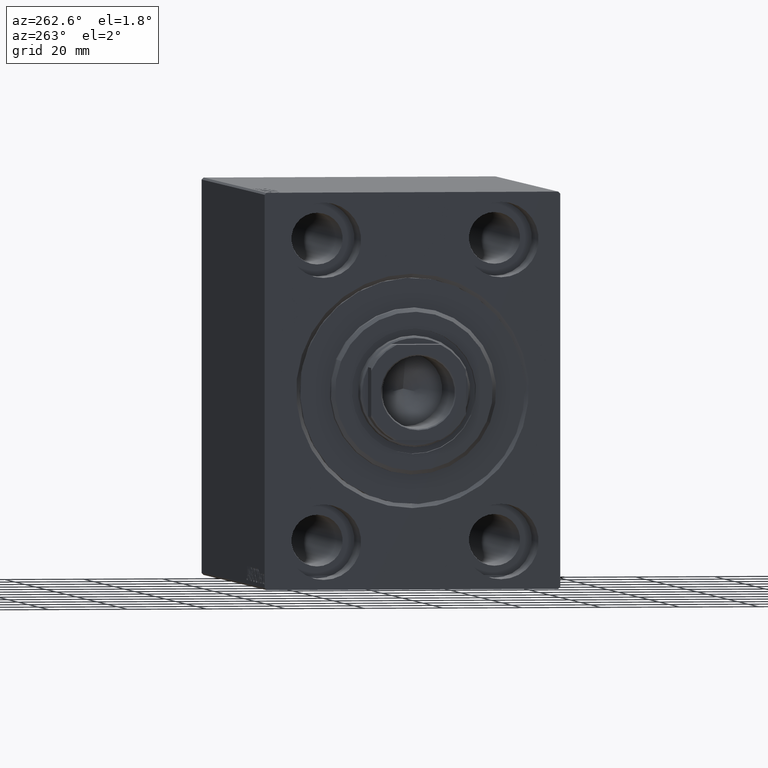
[diagram: clean part render]
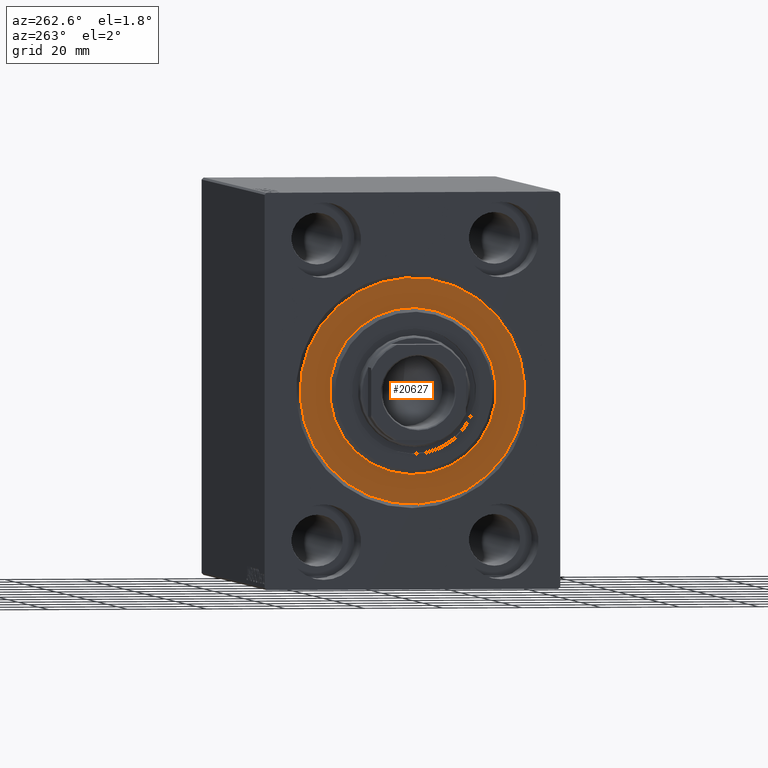
[diagram: same view with one face highlighted and labeled with its STEP entity id]
A machine part, auxiliary view. The second image highlights one B-rep face of the part: STEP entity #20627.
In plain terms, the highlighted planar face has unit normal (1, 0, -0).
Its self-contained STEP definition (entity closure, byte-faithful):
#134 = AXIS2_PLACEMENT_3D ( 'NONE', #29716, #6720, #19922 ) ;
#723 = EDGE_LOOP ( 'NONE', ( #37170, #1459 ) ) ;
#798 = CARTESIAN_POINT ( 'NONE',  ( 0.000000000000000000, 0.000000000000000000, 21.00000000000000000 ) ) ;
#1459 = ORIENTED_EDGE ( 'NONE', *, *, #15046, .F. ) ;
#3487 = CIRCLE ( 'NONE', #9218, 28.50000000000000000 ) ;
#4259 = AXIS2_PLACEMENT_3D ( 'NONE', #40536, #20891, #20254 ) ;
#4590 = VERTEX_POINT ( 'NONE', #28446 ) ;
#6385 = AXIS2_PLACEMENT_3D ( 'NONE', #35016, #17394, #24743 ) ;
#6720 = DIRECTION ( 'NONE',  ( -1.000000000000000000, 0.000000000000000000, 0.000000000000000000 ) ) ;
#7269 = PLANE ( 'NONE',  #4259 ) ;
#9218 = AXIS2_PLACEMENT_3D ( 'NONE', #15676, #25245, #31940 ) ;
#13513 = DIRECTION ( 'NONE',  ( 1.000000000000000000, -0.000000000000000000, 0.000000000000000000 ) ) ;
#15046 = EDGE_CURVE ( 'NONE', #37882, #34484, #19230, .T. ) ;
#15676 = CARTESIAN_POINT ( 'NONE',  ( 0.000000000000000000, 0.000000000000000000, 0.000000000000000000 ) ) ;
#15804 = CIRCLE ( 'NONE', #134, 28.50000000000000000 ) ;
#17394 = DIRECTION ( 'NONE',  ( 1.000000000000000000, -0.000000000000000000, 0.000000000000000000 ) ) ;
#18095 = EDGE_CURVE ( 'NONE', #34484, #37882, #24855, .T. ) ;
#18146 = EDGE_CURVE ( 'NONE', #18247, #4590, #3487, .T. ) ;
#18247 = VERTEX_POINT ( 'NONE', #43530 ) ;
#18462 = EDGE_LOOP ( 'NONE', ( #32184, #30674 ) ) ;
#19200 = CARTESIAN_POINT ( 'NONE',  ( 0.000000000000000000, 2.571758278209441661E-15, -21.00000000000000000 ) ) ;
#19230 = CIRCLE ( 'NONE', #6385, 21.00000000000000000 ) ;
#19922 = DIRECTION ( 'NONE',  ( 0.000000000000000000, 0.000000000000000000, 1.000000000000000000 ) ) ;
#20254 = DIRECTION ( 'NONE',  ( 0.000000000000000000, 0.000000000000000000, 1.000000000000000000 ) ) ;
#20627 = ADVANCED_FACE ( 'NONE', ( #27788, #30271 ), #7269, .F. ) ;
#20891 = DIRECTION ( 'NONE',  ( -1.000000000000000000, 0.000000000000000000, 0.000000000000000000 ) ) ;
#24743 = DIRECTION ( 'NONE',  ( 0.000000000000000000, 0.000000000000000000, -1.000000000000000000 ) ) ;
#24855 = CIRCLE ( 'NONE', #36271, 21.00000000000000000 ) ;
#25235 = EDGE_CURVE ( 'NONE', #4590, #18247, #15804, .T. ) ;
#25245 = DIRECTION ( 'NONE',  ( -1.000000000000000000, 0.000000000000000000, 0.000000000000000000 ) ) ;
#27108 = DIRECTION ( 'NONE',  ( 0.000000000000000000, 0.000000000000000000, -1.000000000000000000 ) ) ;
#27788 = FACE_BOUND ( 'NONE', #723, .T. ) ;
#28446 = CARTESIAN_POINT ( 'NONE',  ( 0.000000000000000000, 0.000000000000000000, -28.50000000000000000 ) ) ;
#29716 = CARTESIAN_POINT ( 'NONE',  ( 0.000000000000000000, 0.000000000000000000, 0.000000000000000000 ) ) ;
#30271 = FACE_OUTER_BOUND ( 'NONE', #18462, .T. ) ;
#30456 = CARTESIAN_POINT ( 'NONE',  ( 0.000000000000000000, 0.000000000000000000, 0.000000000000000000 ) ) ;
#30674 = ORIENTED_EDGE ( 'NONE', *, *, #18146, .F. ) ;
#31940 = DIRECTION ( 'NONE',  ( 0.000000000000000000, 0.000000000000000000, 1.000000000000000000 ) ) ;
#32184 = ORIENTED_EDGE ( 'NONE', *, *, #25235, .F. ) ;
#34484 = VERTEX_POINT ( 'NONE', #798 ) ;
#35016 = CARTESIAN_POINT ( 'NONE',  ( 0.000000000000000000, 0.000000000000000000, 0.000000000000000000 ) ) ;
#36271 = AXIS2_PLACEMENT_3D ( 'NONE', #30456, #13513, #27108 ) ;
#37170 = ORIENTED_EDGE ( 'NONE', *, *, #18095, .F. ) ;
#37882 = VERTEX_POINT ( 'NONE', #19200 ) ;
#40536 = CARTESIAN_POINT ( 'NONE',  ( 0.000000000000000000, 0.000000000000000000, 0.000000000000000000 ) ) ;
#43530 = CARTESIAN_POINT ( 'NONE',  ( 0.000000000000000000, 3.490243377569956456E-15, 28.50000000000000000 ) ) ;